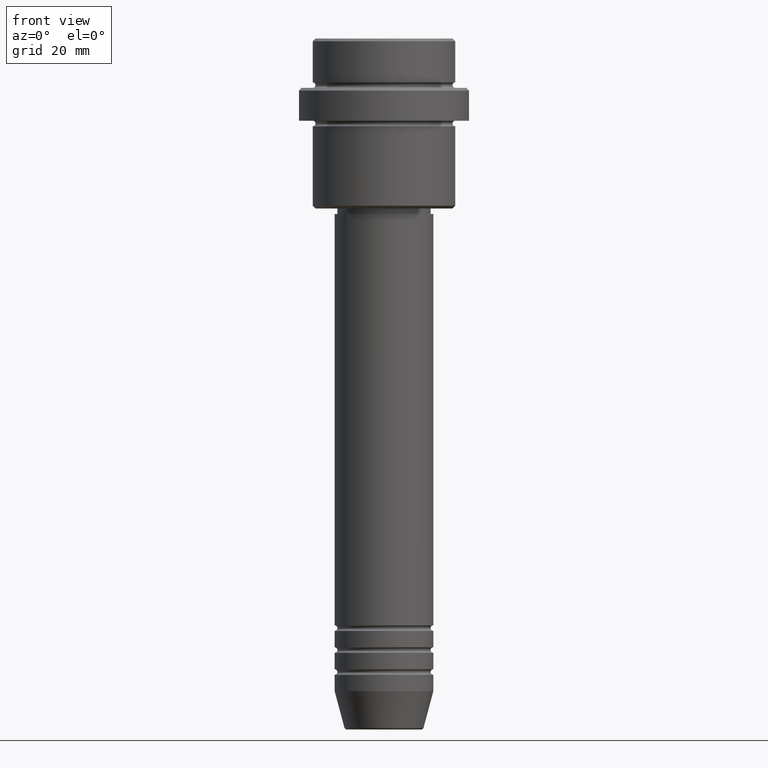
[diagram: clean part render]
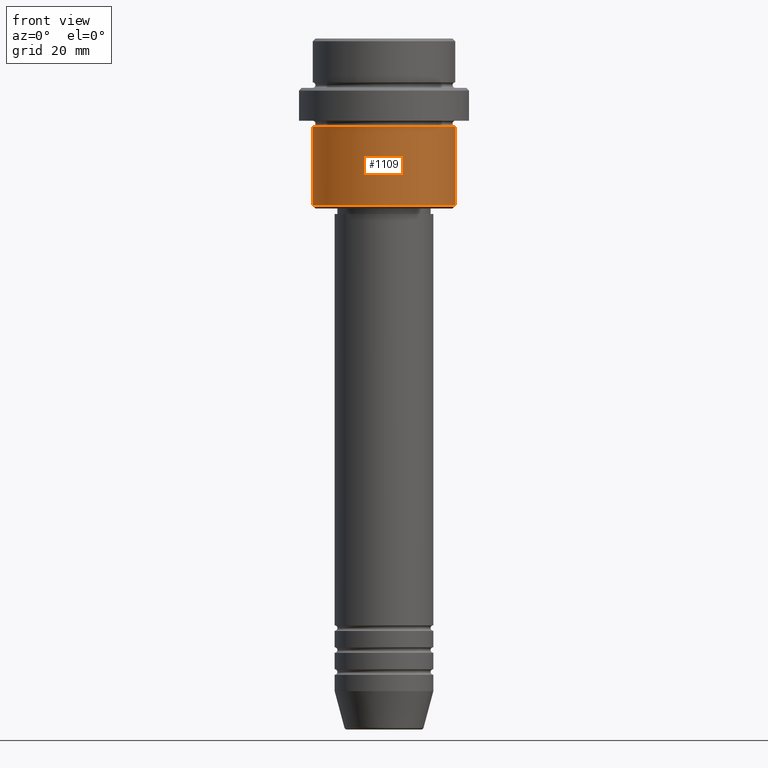
[diagram: same view with one face highlighted and labeled with its STEP entity id]
A machine part, front view. The second image highlights one B-rep face of the part: STEP entity #1109.
In plain terms, the highlighted cylindrical surface (partial cylindrical patch) has radius 13 mm, axis along (-0, -0, 1).
Its self-contained STEP definition (entity closure, byte-faithful):
#14 = VERTEX_POINT ( 'NONE', #853 ) ;
#27 = DIRECTION ( 'NONE',  ( -0.000000000000000000, -0.000000000000000000, 1.000000000000000000 ) ) ;
#46 = VERTEX_POINT ( 'NONE', #1068 ) ;
#119 = CARTESIAN_POINT ( 'NONE',  ( -13.00000000000000000, 1.592040838891559095E-15, 0.000000000000000000 ) ) ;
#133 = CIRCLE ( 'NONE', #927, 13.00000000000000000 ) ;
#180 = EDGE_CURVE ( 'NONE', #1239, #996, #672, .T. ) ;
#195 = DIRECTION ( 'NONE',  ( -1.000000000000000000, 0.000000000000000000, 0.000000000000000000 ) ) ;
#219 = EDGE_CURVE ( 'NONE', #14, #46, #1119, .T. ) ;
#254 = CARTESIAN_POINT ( 'NONE',  ( 13.00000000000000000, 0.000000000000000000, 0.000000000000000000 ) ) ;
#266 = VECTOR ( 'NONE', #688, 1000.000000000000000 ) ;
#272 = AXIS2_PLACEMENT_3D ( 'NONE', #466, #893, #1108 ) ;
#328 = CARTESIAN_POINT ( 'NONE',  ( 0.000000000000000000, 0.000000000000000000, -30.50000000000001776 ) ) ;
#439 = CYLINDRICAL_SURFACE ( 'NONE', #272, 13.00000000000000000 ) ;
#466 = CARTESIAN_POINT ( 'NONE',  ( 0.000000000000000000, 0.000000000000000000, 0.000000000000000000 ) ) ;
#501 = AXIS2_PLACEMENT_3D ( 'NONE', #794, #27, #1005 ) ;
#567 = ORIENTED_EDGE ( 'NONE', *, *, #685, .F. ) ;
#672 = LINE ( 'NONE', #119, #1101 ) ;
#685 = EDGE_CURVE ( 'NONE', #996, #46, #971, .T. ) ;
#688 = DIRECTION ( 'NONE',  ( -0.000000000000000000, -0.000000000000000000, 1.000000000000000000 ) ) ;
#794 = CARTESIAN_POINT ( 'NONE',  ( 0.000000000000000000, 0.000000000000000000, -16.00000000000000000 ) ) ;
#813 = FACE_OUTER_BOUND ( 'NONE', #1113, .T. ) ;
#853 = CARTESIAN_POINT ( 'NONE',  ( 13.00000000000000000, 0.000000000000000000, -30.50000000000001776 ) ) ;
#893 = DIRECTION ( 'NONE',  ( -0.000000000000000000, -0.000000000000000000, 1.000000000000000000 ) ) ;
#927 = AXIS2_PLACEMENT_3D ( 'NONE', #328, #1394, #195 ) ;
#939 = ORIENTED_EDGE ( 'NONE', *, *, #180, .F. ) ;
#971 = CIRCLE ( 'NONE', #501, 13.00000000000000000 ) ;
#980 = DIRECTION ( 'NONE',  ( -0.000000000000000000, -0.000000000000000000, 1.000000000000000000 ) ) ;
#996 = VERTEX_POINT ( 'NONE', #1333 ) ;
#1005 = DIRECTION ( 'NONE',  ( 1.000000000000000000, 0.000000000000000000, 0.000000000000000000 ) ) ;
#1068 = CARTESIAN_POINT ( 'NONE',  ( 13.00000000000000000, 0.000000000000000000, -16.00000000000000000 ) ) ;
#1101 = VECTOR ( 'NONE', #980, 1000.000000000000000 ) ;
#1108 = DIRECTION ( 'NONE',  ( 1.000000000000000000, 0.000000000000000000, 0.000000000000000000 ) ) ;
#1109 = ADVANCED_FACE ( 'NONE', ( #813 ), #439, .T. ) ;
#1113 = EDGE_LOOP ( 'NONE', ( #939, #1149, #1142, #567 ) ) ;
#1119 = LINE ( 'NONE', #254, #266 ) ;
#1142 = ORIENTED_EDGE ( 'NONE', *, *, #219, .T. ) ;
#1149 = ORIENTED_EDGE ( 'NONE', *, *, #1375, .T. ) ;
#1239 = VERTEX_POINT ( 'NONE', #1366 ) ;
#1333 = CARTESIAN_POINT ( 'NONE',  ( -13.00000000000000000, 1.592040838891559095E-15, -16.00000000000000000 ) ) ;
#1366 = CARTESIAN_POINT ( 'NONE',  ( -13.00000000000000000, 1.592040838891559095E-15, -30.50000000000001776 ) ) ;
#1375 = EDGE_CURVE ( 'NONE', #1239, #14, #133, .T. ) ;
#1394 = DIRECTION ( 'NONE',  ( -0.000000000000000000, -0.000000000000000000, 1.000000000000000000 ) ) ;